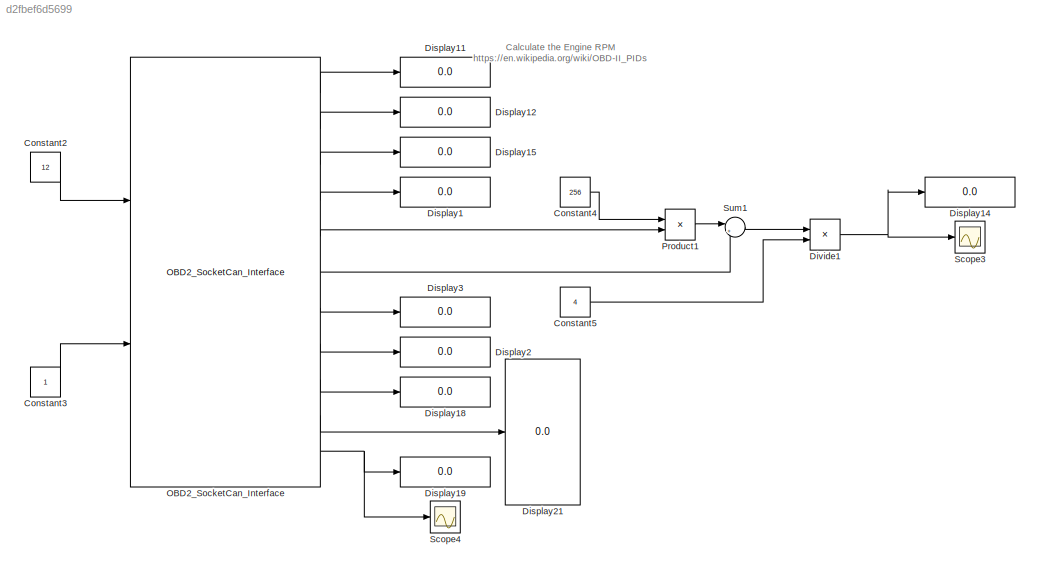
MODEL slx_d2fbef6d5699
KIND model
CONFIG AbsTol = auto
CONFIG EnableMultiTasking = on
CONFIG FixedStep = 0.1
CONFIG MaxStep = auto
CONFIG MinStep = auto
CONFIG RelTol = 1e-3
CONFIG SampleTimeConstraint = Unconstrained
CONFIG Solver = FixedStepAuto
CONFIG SolverName = FixedStepAuto
CONFIG StartTime = 0.0
CONFIG StopTime = inf
BLOCK [Constant] Constant2
  OutDataTypeStr = uint8
  SampleTime = -1
  Value = 12
BLOCK [Constant] Constant3
  OutDataTypeStr = uint8
  SampleTime = -1
BLOCK [Constant] Constant4
  SampleTime = -1
  Value = 256
BLOCK [Constant] Constant5
  SampleTime = -1
  Value = 4
BLOCK [Display] Display1
  Decimation = 1
  Ports = [1]
BLOCK [Display] Display11
  Decimation = 1
  Format = hex (Stored Integer)
  Ports = [1]
BLOCK [Display] Display12
  Decimation = 1
  Ports = [1]
BLOCK [Display] Display14
  Decimation = 1
  Ports = [1]
BLOCK [Display] Display15
  Decimation = 1
  Ports = [1]
BLOCK [Display] Display18
  Decimation = 1
  Ports = [1]
BLOCK [Display] Display19
  Decimation = 1
  Ports = [1]
BLOCK [Display] Display2
  Decimation = 1
  Ports = [1]
BLOCK [Display] Display21
  Decimation = 1
  Ports = [1]
BLOCK [Display] Display3
  Decimation = 1
  Ports = [1]
BLOCK [Product] Divide1
  InputSameDT = off
  Inputs = */
  OutDataTypeStr = Inherit: Inherit via internal rule
  Ports = [2, 1]
  RndMeth = Floor
  SaturateOnIntegerOverflow = off
BLOCK [Reference] OBD2_SocketCan_Interface  REF=OBD2_SocketCan_Library/OBD2_SocketCan_Interface
  Ports = [2, 11]
  SourceBlock = OBD2_SocketCan_Library/OBD2_SocketCan_Interface
  SourceProductName = OBD2 SocketCan Interface
  SourceType = Linux SocketCan OBD2 CAN bus Block
BLOCK [Product] Product1
  InputSameDT = off
  OutDataTypeStr = Inherit: Inherit via internal rule
  Ports = [2, 1]
  RndMeth = Floor
  SaturateOnIntegerOverflow = off
BLOCK [Scope] Scope3
  NumInputPorts = 1
  Ports = [1]
  ScopeSpecificationString = Simulink.scopes.TimeScopeBlockCfg('CurrentConfiguration', extmgr.ConfigurationSet(extmgr.Configuration('Core','General UI',true),extmgr.Configuration('Core','Source UI',true),extmgr.Configuration('Sources','WiredSimulink',true,'DataLoggingVariableName','ScopeData2'),extmgr.Configuration('Visuals','Time Domain',true,'SerializedDisplays',{struct('MinYLimReal','-0.125','MaxYLimReal','1.125','YLabelRe...<+1398ch>
BLOCK [Scope] Scope4
  NumInputPorts = 1
  Ports = [1]
  ScopeSpecificationString = Simulink.scopes.TimeScopeBlockCfg('CurrentConfiguration', extmgr.ConfigurationSet(extmgr.Configuration('Core','General UI',true),extmgr.Configuration('Core','Source UI',true),extmgr.Configuration('Sources','WiredSimulink',true,'DataLoggingVariableName','ScopeData3'),extmgr.Configuration('Visuals','Time Domain',true,'SerializedDisplays',{struct('MinYLimReal','-0.125','MaxYLimReal','1.125','YLabelRe...<+1398ch>
BLOCK [Sum] Sum1
  IconShape = round
  InputSameDT = off
  Inputs = |++
  OutDataTypeStr = Inherit: Inherit via internal rule
  Ports = [2, 1]
  SaturateOnIntegerOverflow = off
ANNOTATION (root): Calculate the Engine RPM https://en.wikipedia.org/wiki/OBD-II_PIDs
LINE Constant2:1 -> OBD2_SocketCan_Interface:1
LINE Constant3:1 -> OBD2_SocketCan_Interface:2
LINE Constant4:1 -> Product1:1
LINE Constant5:1 -> Divide1:2
NET Divide1:1 -> Display14:1, Scope3:1
LINE OBD2_SocketCan_Interface:1 -> Display11:1
LINE OBD2_SocketCan_Interface:10 -> Display21:1
NET OBD2_SocketCan_Interface:11 -> Display19:1, Scope4:1
LINE OBD2_SocketCan_Interface:2 -> Display12:1
LINE OBD2_SocketCan_Interface:3 -> Display15:1
LINE OBD2_SocketCan_Interface:4 -> Display1:1
LINE OBD2_SocketCan_Interface:5 -> Product1:2
LINE OBD2_SocketCan_Interface:6 -> Sum1:2
LINE OBD2_SocketCan_Interface:7 -> Display3:1
LINE OBD2_SocketCan_Interface:8 -> Display2:1
LINE OBD2_SocketCan_Interface:9 -> Display18:1
LINE Product1:1 -> Sum1:1
LINE Sum1:1 -> Divide1:1
note: NET lines group one-source signal fan-out (src -> all destinations, sorted); 1:1 wires keep LINE
